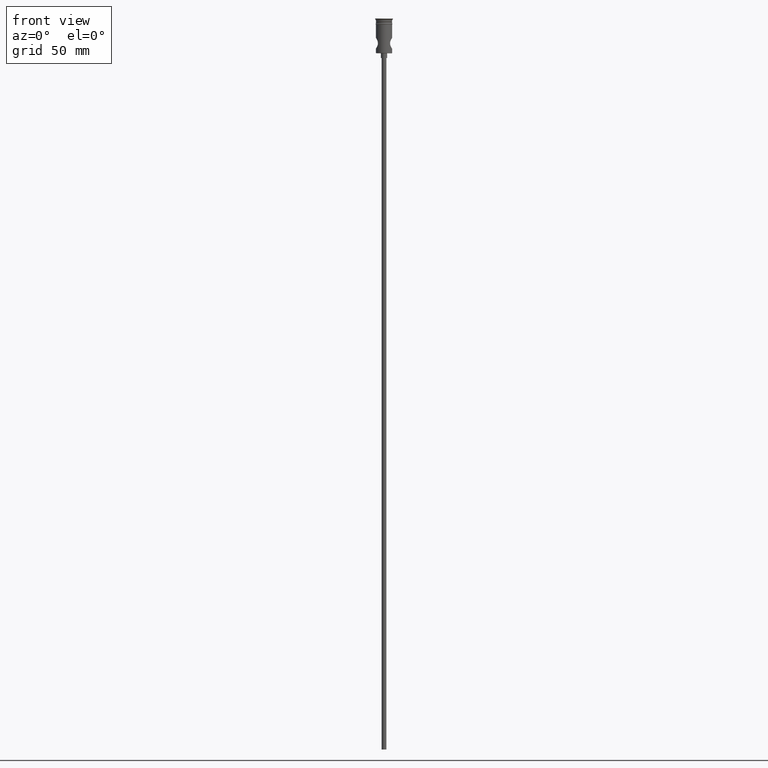
[diagram: clean part render]
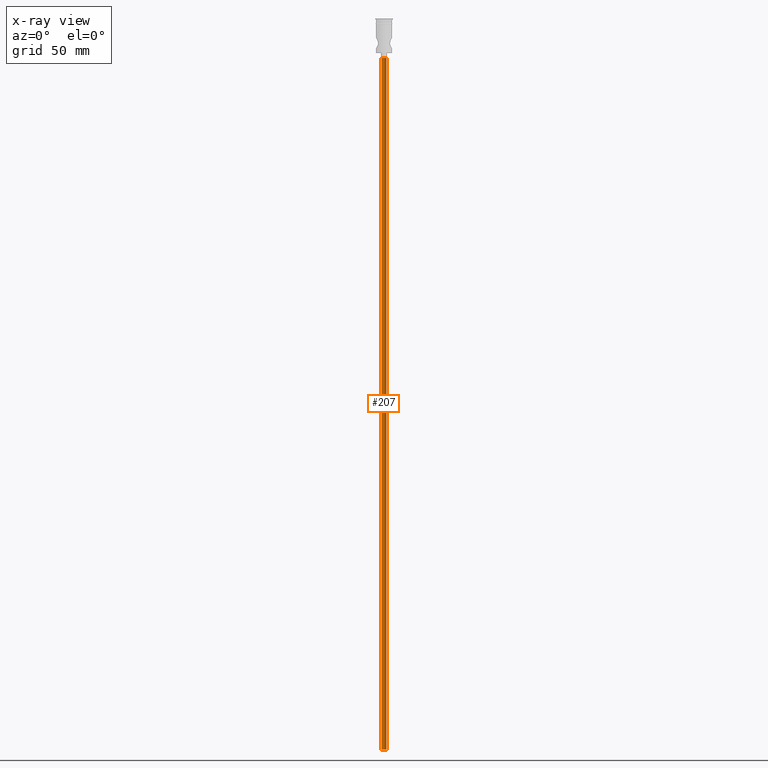
[diagram: x-ray — body ghosted, one internal face saturated and labeled with its STEP entity id]
A machine part, front view, then the same camera in x-ray: the body is ghosted and one INTERNAL B-rep face — a face not visible from any outside direction — is saturated and labeled: STEP entity #207.
In plain terms, the highlighted cylindrical surface (edge-blend (fillet) strip) has radius 1.5 mm, axis along (-0, -0, 1).
Its self-contained STEP definition (entity closure, byte-faithful):
#10 = EDGE_CURVE ( 'NONE', #1209, #670, #662, .T. ) ;
#56 = CARTESIAN_POINT ( 'NONE',  ( 1.500000000000000222, 0.000000000000000000, -25.50000000000000000 ) ) ;
#66 = ORIENTED_EDGE ( 'NONE', *, *, #1291, .F. ) ;
#110 = CARTESIAN_POINT ( 'NONE',  ( 1.500000000000000222, 0.000000000000000000, -472.5000000000000568 ) ) ;
#125 = AXIS2_PLACEMENT_3D ( 'NONE', #373, #1358, #241 ) ;
#198 = CARTESIAN_POINT ( 'NONE',  ( -1.500000000000000222, 1.836970198721030181E-16, -472.5000000000000568 ) ) ;
#207 = ADVANCED_FACE ( 'NONE', ( #661 ), #998, .T. ) ;
#241 = DIRECTION ( 'NONE',  ( 1.000000000000000000, 0.000000000000000000, 0.000000000000000000 ) ) ;
#297 = CIRCLE ( 'NONE', #825, 1.500000000000000222 ) ;
#309 = DIRECTION ( 'NONE',  ( 0.000000000000000000, 0.000000000000000000, -1.000000000000000000 ) ) ;
#343 = EDGE_CURVE ( 'NONE', #567, #1179, #297, .T. ) ;
#366 = CARTESIAN_POINT ( 'NONE',  ( -1.500000000000000222, 1.836970198721030181E-16, -472.5000000000000568 ) ) ;
#373 = CARTESIAN_POINT ( 'NONE',  ( 0.000000000000000000, 0.000000000000000000, -472.5000000000000568 ) ) ;
#398 = ORIENTED_EDGE ( 'NONE', *, *, #343, .F. ) ;
#537 = EDGE_LOOP ( 'NONE', ( #398, #639, #627, #66 ) ) ;
#555 = DIRECTION ( 'NONE',  ( -1.000000000000000000, 0.000000000000000000, 0.000000000000000000 ) ) ;
#567 = VERTEX_POINT ( 'NONE', #366 ) ;
#599 = VECTOR ( 'NONE', #773, 1000.000000000000000 ) ;
#601 = DIRECTION ( 'NONE',  ( -0.000000000000000000, -0.000000000000000000, 1.000000000000000000 ) ) ;
#624 = CARTESIAN_POINT ( 'NONE',  ( 1.500000000000000222, 0.000000000000000000, -472.5000000000000568 ) ) ;
#627 = ORIENTED_EDGE ( 'NONE', *, *, #10, .T. ) ;
#639 = ORIENTED_EDGE ( 'NONE', *, *, #734, .T. ) ;
#661 = FACE_OUTER_BOUND ( 'NONE', #537, .T. ) ;
#662 = CIRCLE ( 'NONE', #1215, 1.500000000000000222 ) ;
#670 = VERTEX_POINT ( 'NONE', #56 ) ;
#710 = LINE ( 'NONE', #198, #1064 ) ;
#734 = EDGE_CURVE ( 'NONE', #567, #1209, #710, .T. ) ;
#773 = DIRECTION ( 'NONE',  ( -0.000000000000000000, -0.000000000000000000, 1.000000000000000000 ) ) ;
#825 = AXIS2_PLACEMENT_3D ( 'NONE', #1356, #1110, #555 ) ;
#993 = LINE ( 'NONE', #110, #599 ) ;
#998 = CYLINDRICAL_SURFACE ( 'NONE', #125, 1.500000000000000222 ) ;
#1064 = VECTOR ( 'NONE', #601, 1000.000000000000000 ) ;
#1110 = DIRECTION ( 'NONE',  ( 0.000000000000000000, 0.000000000000000000, -1.000000000000000000 ) ) ;
#1179 = VERTEX_POINT ( 'NONE', #624 ) ;
#1180 = CARTESIAN_POINT ( 'NONE',  ( -1.500000000000000222, 1.836970198721030181E-16, -25.50000000000000000 ) ) ;
#1209 = VERTEX_POINT ( 'NONE', #1180 ) ;
#1215 = AXIS2_PLACEMENT_3D ( 'NONE', #1364, #309, #1406 ) ;
#1291 = EDGE_CURVE ( 'NONE', #1179, #670, #993, .T. ) ;
#1356 = CARTESIAN_POINT ( 'NONE',  ( 0.000000000000000000, 0.000000000000000000, -472.5000000000000568 ) ) ;
#1358 = DIRECTION ( 'NONE',  ( -0.000000000000000000, -0.000000000000000000, 1.000000000000000000 ) ) ;
#1364 = CARTESIAN_POINT ( 'NONE',  ( 0.000000000000000000, 0.000000000000000000, -25.50000000000000000 ) ) ;
#1406 = DIRECTION ( 'NONE',  ( -1.000000000000000000, 0.000000000000000000, 0.000000000000000000 ) ) ;